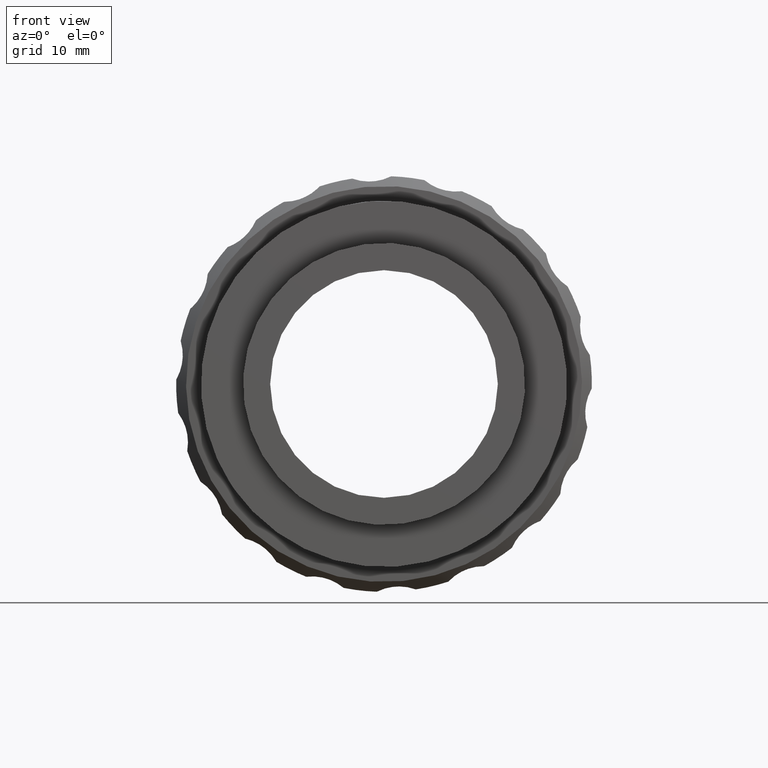
[diagram: clean part render]
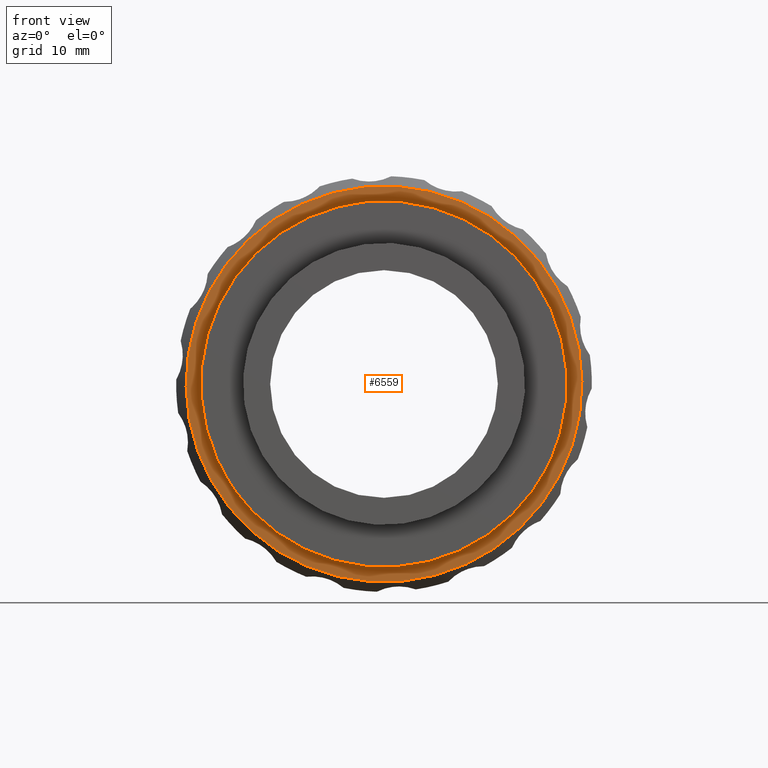
[diagram: same view with one face highlighted and labeled with its STEP entity id]
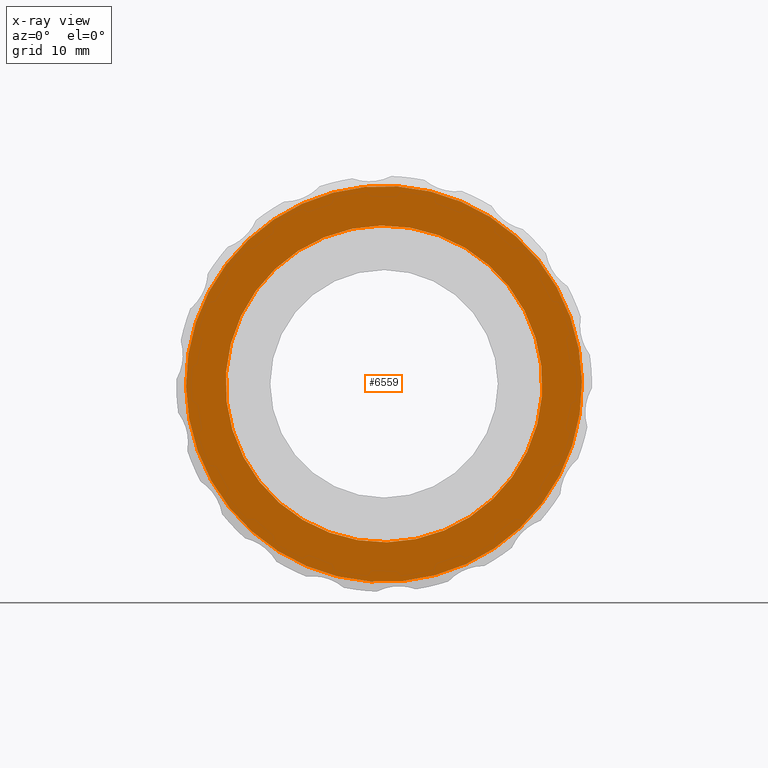
[diagram: x-ray of the same camera — body ghosted, the highlighted face saturated]
A machine part, front view. The second image highlights one B-rep face of the part: STEP entity #6559.
The next image is the same camera in x-ray: the body ghosted, the highlighted face saturated — about 0% of this face is hidden behind the body in this view.
In plain terms, the highlighted planar face has unit normal (0, 1, 0).
Its self-contained STEP definition (entity closure, byte-faithful):
#324 = DIRECTION ( 'NONE',  ( 0.6871969081691013947, 0.000000000000000000, -0.7264712034229765525 ) ) ;
#544 = PLANE ( 'NONE',  #9539 ) ;
#724 = CARTESIAN_POINT ( 'NONE',  ( 19.71563917769486096, -23.54875568700542487, 30.37388237687154202 ) ) ;
#937 = ORIENTED_EDGE ( 'NONE', *, *, #1261, .T. ) ;
#1033 = CARTESIAN_POINT ( 'NONE',  ( 5.971701014312827738, -23.54875568700542487, 44.90330644533106863 ) ) ;
#1261 = EDGE_CURVE ( 'NONE', #2672, #6781, #3794, .T. ) ;
#1359 = ORIENTED_EDGE ( 'NONE', *, *, #5018, .T. ) ;
#1696 = CIRCLE ( 'NONE', #9826, 16.00000000000000355 ) ;
#1830 = DIRECTION ( 'NONE',  ( 0.000000000000000000, -1.000000000000000000, -0.000000000000000000 ) ) ;
#1946 = ORIENTED_EDGE ( 'NONE', *, *, #2256, .F. ) ;
#2118 = CARTESIAN_POINT ( 'NONE',  ( -7.772237149069202822, -23.54875568700542487, 59.43273051379059524 ) ) ;
#2181 = DIRECTION ( 'NONE',  ( 0.6871969081691015058, 0.000000000000000000, -0.7264712034229763304 ) ) ;
#2256 = EDGE_CURVE ( 'NONE', #9654, #3852, #1696, .T. ) ;
#2598 = CARTESIAN_POINT ( 'NONE',  ( 5.971701014312827738, -23.54875568700542487, 44.90330644533106863 ) ) ;
#2672 = VERTEX_POINT ( 'NONE', #2118 ) ;
#2822 = CARTESIAN_POINT ( 'NONE',  ( -8.557723054146702424, -23.54875568700542487, 31.15936828194903541 ) ) ;
#2891 = CARTESIAN_POINT ( 'NONE',  ( 5.971701014312827738, -23.54875568700542487, 44.90330644533106863 ) ) ;
#3285 = AXIS2_PLACEMENT_3D ( 'NONE', #1033, #4114, #7870 ) ;
#3631 = DIRECTION ( 'NONE',  ( 0.000000000000000000, 1.000000000000000000, 0.000000000000000000 ) ) ;
#3794 = CIRCLE ( 'NONE', #8666, 20.00000000000000355 ) ;
#3852 = VERTEX_POINT ( 'NONE', #4355 ) ;
#4114 = DIRECTION ( 'NONE',  ( 0.000000000000000000, -1.000000000000000000, -0.000000000000000000 ) ) ;
#4355 = CARTESIAN_POINT ( 'NONE',  ( -5.023449516392793690, -23.54875568700542487, 56.52684570009868992 ) ) ;
#4479 = EDGE_LOOP ( 'NONE', ( #1946, #9639 ) ) ;
#5018 = EDGE_CURVE ( 'NONE', #6781, #2672, #5365, .T. ) ;
#5222 = DIRECTION ( 'NONE',  ( -0.6871969081691013947, 0.000000000000000000, 0.7264712034229764415 ) ) ;
#5365 = CIRCLE ( 'NONE', #3285, 20.00000000000000355 ) ;
#5443 = CIRCLE ( 'NONE', #7578, 16.00000000000000355 ) ;
#5479 = CARTESIAN_POINT ( 'NONE',  ( 16.96685154501845361, -23.54875568700542487, 33.27976719056344024 ) ) ;
#6062 = EDGE_LOOP ( 'NONE', ( #937, #1359 ) ) ;
#6114 = DIRECTION ( 'NONE',  ( 0.000000000000000000, -1.000000000000000000, -0.000000000000000000 ) ) ;
#6559 = ADVANCED_FACE ( 'NONE', ( #8303, #9899 ), #544, .F. ) ;
#6781 = VERTEX_POINT ( 'NONE', #724 ) ;
#6821 = EDGE_CURVE ( 'NONE', #3852, #9654, #5443, .T. ) ;
#7457 = DIRECTION ( 'NONE',  ( 0.000000000000000000, -1.000000000000000000, -0.000000000000000000 ) ) ;
#7578 = AXIS2_PLACEMENT_3D ( 'NONE', #2891, #6114, #8319 ) ;
#7870 = DIRECTION ( 'NONE',  ( 0.6871969081691015058, 0.000000000000000000, -0.7264712034229763304 ) ) ;
#8303 = FACE_BOUND ( 'NONE', #4479, .T. ) ;
#8319 = DIRECTION ( 'NONE',  ( 0.6871969081691013947, 0.000000000000000000, -0.7264712034229765525 ) ) ;
#8666 = AXIS2_PLACEMENT_3D ( 'NONE', #9151, #7457, #2181 ) ;
#9151 = CARTESIAN_POINT ( 'NONE',  ( 5.971701014312827738, -23.54875568700542487, 44.90330644533106863 ) ) ;
#9539 = AXIS2_PLACEMENT_3D ( 'NONE', #2822, #3631, #5222 ) ;
#9639 = ORIENTED_EDGE ( 'NONE', *, *, #6821, .F. ) ;
#9654 = VERTEX_POINT ( 'NONE', #5479 ) ;
#9826 = AXIS2_PLACEMENT_3D ( 'NONE', #2598, #1830, #324 ) ;
#9899 = FACE_OUTER_BOUND ( 'NONE', #6062, .T. ) ;